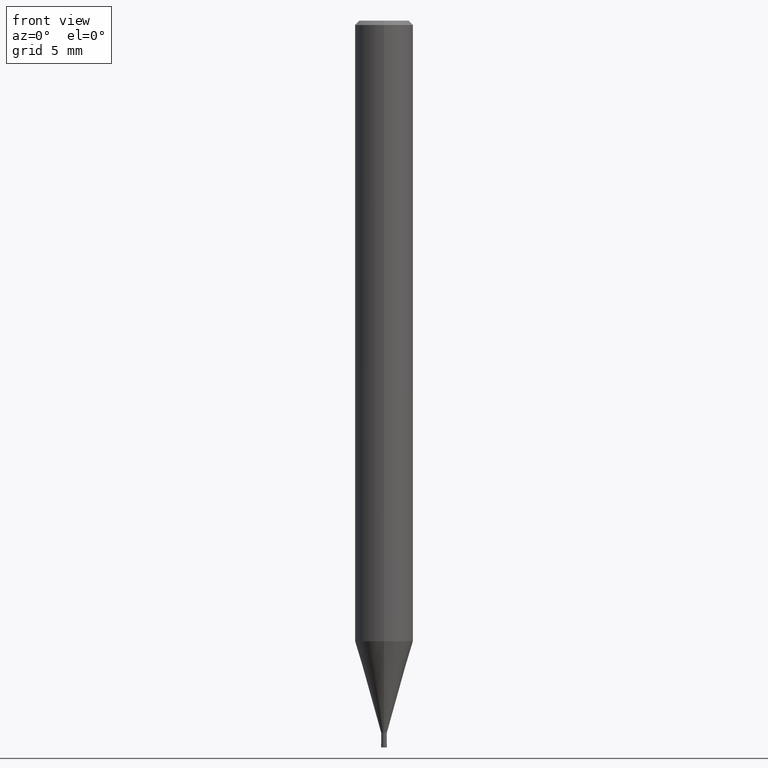
[diagram: clean part render]
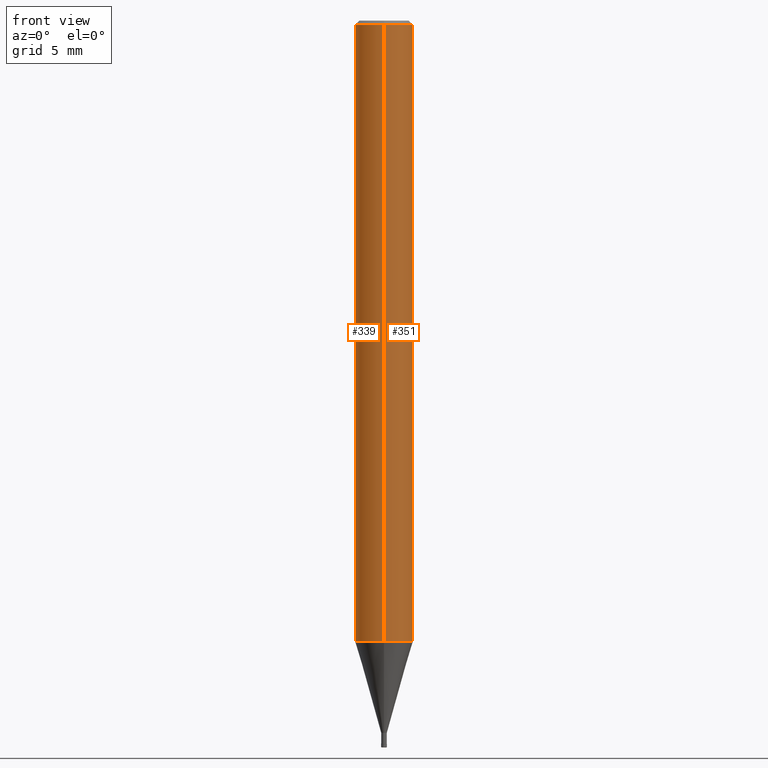
[diagram: same view with one multi-face feature highlighted, each face labeled with its STEP entity id]
A machine part, front view. The highlighted faces form ONE feature: a constant-radius fillet chain: 2 tangent blend faces with common blend radius 2 mm. The faces share edges in the B-rep.
Their STEP definitions:
[1] entity #351 (Cylinder):
#143=EDGE_CURVE('',#215,#283,#379,.T.);
#211=EDGE_CURVE('',#237,#283,#456,.T.);
#215=VERTEX_POINT('',#460);
#237=VERTEX_POINT('',#485);
#251=EDGE_CURVE('',#261,#237,#500,.T.);
#261=VERTEX_POINT('',#513);
#283=VERTEX_POINT('',#537);
#347=EDGE_CURVE('',#215,#261,#610,.T.);
#351=ADVANCED_FACE('',(#614),#615,.T.);
#379=CIRCLE('',#637,2.0);
#456=LINE('',#736,#737);
#460=CARTESIAN_POINT('',(0.0,2.0,-0.289999999999999));
#485=CARTESIAN_POINT('',(2.44921270764475E-016,-2.0,-42.686));
#500=CIRCLE('',#795,2.0);
#513=CARTESIAN_POINT('',(0.0,2.0,-42.686));
#537=CARTESIAN_POINT('',(2.44921270764475E-016,-2.0,-0.289999999999999));
#610=LINE('',#931,#932);
#614=FACE_OUTER_BOUND('',#938,.T.);
#615=CYLINDRICAL_SURFACE('',#939,2.0);
#637=AXIS2_PLACEMENT_3D('',#951,#952,#953);
#736=CARTESIAN_POINT('',(2.44921270764475E-016,-2.0,-21.488));
#737=VECTOR('',#1064,1.0);
#795=AXIS2_PLACEMENT_3D('',#1111,#1112,#1113);
#931=CARTESIAN_POINT('',(-2.44921270764475E-016,2.0,-21.488));
#932=VECTOR('',#1246,1.0);
#938=EDGE_LOOP('',(#1249,#1250,#1251,#1252));
#939=AXIS2_PLACEMENT_3D('',#1253,#1254,#1255);
#951=CARTESIAN_POINT('',(0.0,0.0,-0.289999999999999));
#952=DIRECTION('',(0.0,0.0,-1.0));
#953=DIRECTION('',(0.0,1.0,0.0));
#1064=DIRECTION('',(-0.0,-0.0,1.0));
#1111=CARTESIAN_POINT('',(0.0,0.0,-42.686));
#1112=DIRECTION('',(0.0,0.0,-1.0));
#1113=DIRECTION('',(0.0,1.0,0.0));
#1246=DIRECTION('',(0.0,0.0,-1.0));
#1249=ORIENTED_EDGE('',*,*,#347,.F.);
#1250=ORIENTED_EDGE('',*,*,#143,.T.);
#1251=ORIENTED_EDGE('',*,*,#211,.F.);
#1252=ORIENTED_EDGE('',*,*,#251,.F.);
#1253=CARTESIAN_POINT('',(0.0,0.0,-21.488));
#1254=DIRECTION('',(-0.0,-0.0,1.0));
#1255=DIRECTION('',(0.0,1.0,0.0));
[2] entity #339 (Cylinder):
#211=EDGE_CURVE('',#237,#283,#456,.T.);
#215=VERTEX_POINT('',#460);
#237=VERTEX_POINT('',#485);
#261=VERTEX_POINT('',#513);
#283=VERTEX_POINT('',#537);
#315=EDGE_CURVE('',#283,#215,#573,.T.);
#319=EDGE_CURVE('',#237,#261,#579,.T.);
#339=ADVANCED_FACE('',(#599),#600,.T.);
#347=EDGE_CURVE('',#215,#261,#610,.T.);
#456=LINE('',#736,#737);
#460=CARTESIAN_POINT('',(0.0,2.0,-0.289999999999999));
#485=CARTESIAN_POINT('',(2.44921270764475E-016,-2.0,-42.686));
#513=CARTESIAN_POINT('',(0.0,2.0,-42.686));
#537=CARTESIAN_POINT('',(2.44921270764475E-016,-2.0,-0.289999999999999));
#573=CIRCLE('',#884,2.0);
#579=CIRCLE('',#891,2.0);
#599=FACE_OUTER_BOUND('',#919,.T.);
#600=CYLINDRICAL_SURFACE('',#920,2.0);
#610=LINE('',#931,#932);
#736=CARTESIAN_POINT('',(2.44921270764475E-016,-2.0,-21.488));
#737=VECTOR('',#1064,1.0);
#884=AXIS2_PLACEMENT_3D('',#1199,#1200,#1201);
#891=AXIS2_PLACEMENT_3D('',#1210,#1211,#1212);
#919=EDGE_LOOP('',(#1223,#1224,#1225,#1226));
#920=AXIS2_PLACEMENT_3D('',#1227,#1228,#1229);
#931=CARTESIAN_POINT('',(-2.44921270764475E-016,2.0,-21.488));
#932=VECTOR('',#1246,1.0);
#1064=DIRECTION('',(-0.0,-0.0,1.0));
#1199=CARTESIAN_POINT('',(0.0,0.0,-0.289999999999999));
#1200=DIRECTION('',(0.0,0.0,-1.0));
#1201=DIRECTION('',(0.0,1.0,0.0));
#1210=CARTESIAN_POINT('',(0.0,0.0,-42.686));
#1211=DIRECTION('',(0.0,0.0,-1.0));
#1212=DIRECTION('',(0.0,1.0,0.0));
#1223=ORIENTED_EDGE('',*,*,#347,.T.);
#1224=ORIENTED_EDGE('',*,*,#319,.F.);
#1225=ORIENTED_EDGE('',*,*,#211,.T.);
#1226=ORIENTED_EDGE('',*,*,#315,.T.);
#1227=CARTESIAN_POINT('',(0.0,0.0,-21.488));
#1228=DIRECTION('',(-0.0,-0.0,1.0));
#1229=DIRECTION('',(0.0,1.0,0.0));
#1246=DIRECTION('',(0.0,0.0,-1.0));